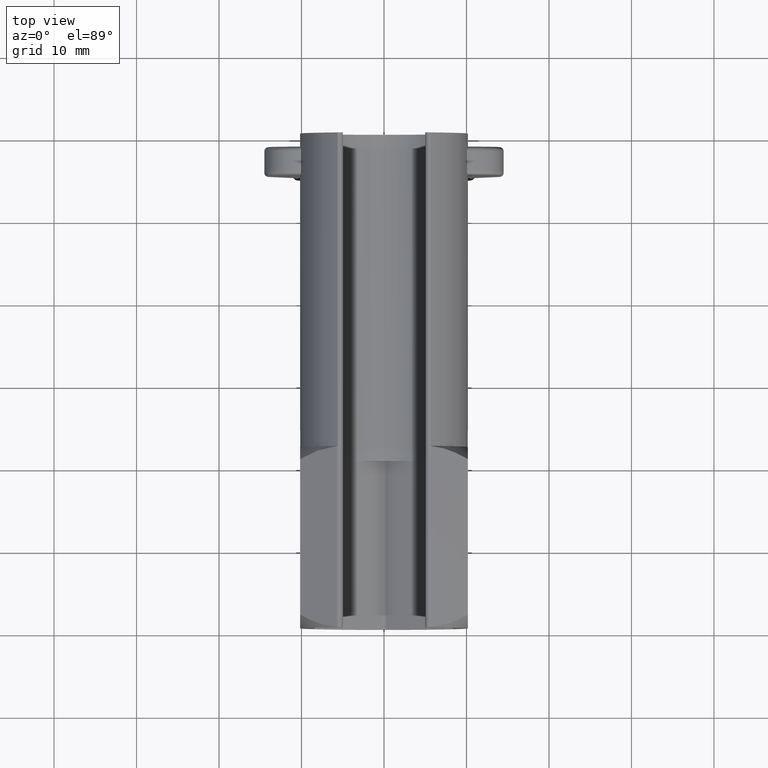
[diagram: clean part render]
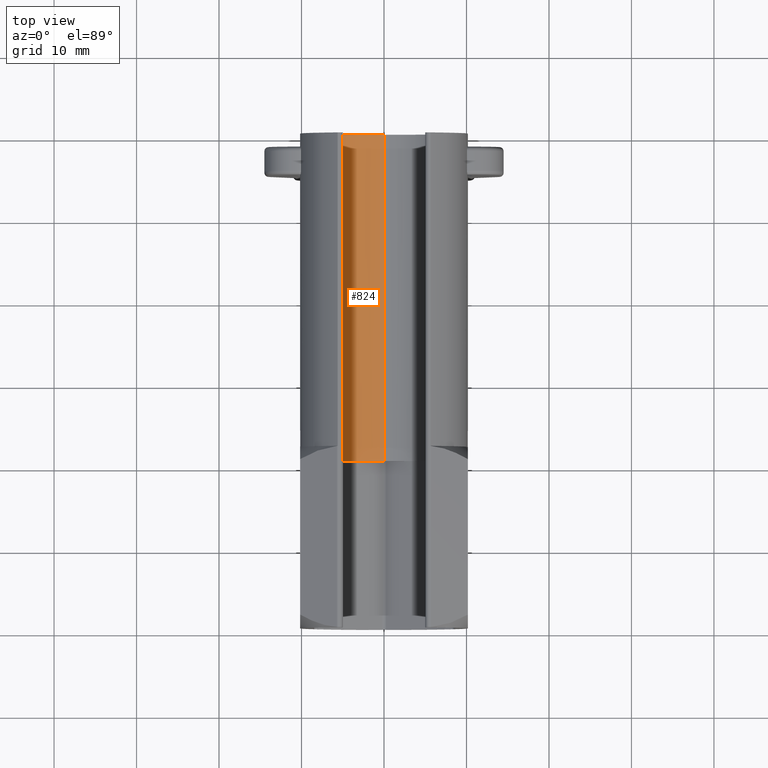
[diagram: same view with one face highlighted and labeled with its STEP entity id]
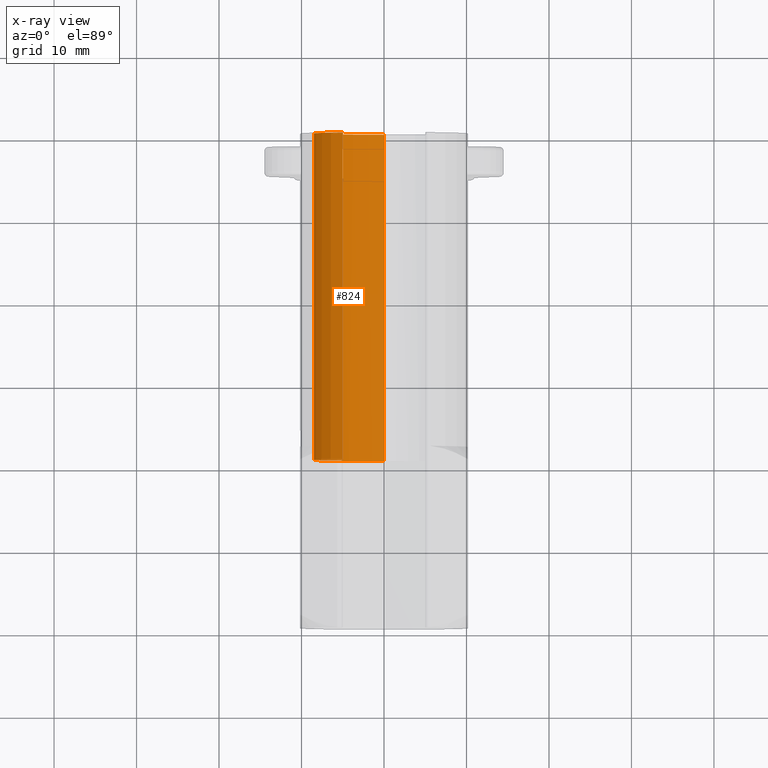
[diagram: x-ray of the same camera — body ghosted, the highlighted face saturated]
A machine part, top view. The second image highlights one B-rep face of the part: STEP entity #824.
The next image is the same camera in x-ray: the body ghosted, the highlighted face saturated — about 0% of this face is hidden behind the body in this view.
In plain terms, the highlighted cylindrical surface (partial cylindrical patch) has radius 8.5 mm, axis along (0, -1, 0).
Its self-contained STEP definition (entity closure, byte-faithful):
#741 = VERTEX_POINT ( 'NONE', #2211 ) ;
#744 = EDGE_CURVE ( 'NONE', #741, #745, #2209, .T. ) ;
#745 = VERTEX_POINT ( 'NONE', #2205 ) ;
#805 = ORIENTED_EDGE ( 'NONE', *, *, #744, .F. ) ;
#806 = ORIENTED_EDGE ( 'NONE', *, *, #807, .F. ) ;
#807 = EDGE_CURVE ( 'NONE', #808, #741, #2329, .T. ) ;
#808 = VERTEX_POINT ( 'NONE', #2324 ) ;
#809 = ORIENTED_EDGE ( 'NONE', *, *, #810, .T. ) ;
#810 = EDGE_CURVE ( 'NONE', #808, #811, #2385, .T. ) ;
#811 = VERTEX_POINT ( 'NONE', #2381 ) ;
#812 = ORIENTED_EDGE ( 'NONE', *, *, #813, .F. ) ;
#813 = EDGE_CURVE ( 'NONE', #814, #811, #2380, .T. ) ;
#814 = VERTEX_POINT ( 'NONE', #2375 ) ;
#815 = ORIENTED_EDGE ( 'NONE', *, *, #816, .F. ) ;
#816 = EDGE_CURVE ( 'NONE', #817, #814, #2374, .T. ) ;
#817 = VERTEX_POINT ( 'NONE', #2369 ) ;
#818 = ORIENTED_EDGE ( 'NONE', *, *, #857, .F. ) ;
#824 = ADVANCED_FACE ( 'NONE', ( #2359 ), #2358, .F. ) ;
#825 = EDGE_LOOP ( 'NONE', ( #805, #806, #809, #812, #815, #818 ) ) ;
#857 = EDGE_CURVE ( 'NONE', #745, #817, #2471, .T. ) ;
#2205 = CARTESIAN_POINT ( 'NONE',  ( 0.0000000000000000000, 20.42569849446715600, -8.500000000000000000 ) ) ;
#2206 = DIRECTION ( 'NONE',  ( 0.0000000000000000000, -1.000000000000000000, 0.0000000000000000000 ) ) ;
#2207 = VECTOR ( 'NONE', #2206, 1000.000000000000000 ) ;
#2208 = CARTESIAN_POINT ( 'NONE',  ( 0.0000000000000000000, 22.00000000000000000, -8.500000000000000000 ) ) ;
#2209 = LINE ( 'NONE', #2208, #2207 ) ;
#2211 = CARTESIAN_POINT ( 'NONE',  ( 0.0000000000000000000, 60.00000000000000000, -8.500000000000000000 ) ) ;
#2324 = CARTESIAN_POINT ( 'NONE',  ( -4.999999999999997300, 60.00000000000000000, 6.873863542433761100 ) ) ;
#2325 = DIRECTION ( 'NONE',  ( 0.0000000000000000000, 0.0000000000000000000, 1.000000000000000000 ) ) ;
#2326 = DIRECTION ( 'NONE',  ( 0.0000000000000000000, -1.000000000000000000, 0.0000000000000000000 ) ) ;
#2327 = CARTESIAN_POINT ( 'NONE',  ( 0.0000000000000000000, 60.00000000000000000, 0.0000000000000000000 ) ) ;
#2328 = AXIS2_PLACEMENT_3D ( 'NONE', #2327, #2326, #2325 ) ;
#2329 = CIRCLE ( 'NONE', #2328, 8.500000000000000000 ) ;
#2354 = DIRECTION ( 'NONE',  ( 0.0000000000000000000, 0.0000000000000000000, -1.000000000000000000 ) ) ;
#2355 = DIRECTION ( 'NONE',  ( 0.0000000000000000000, -1.000000000000000000, 0.0000000000000000000 ) ) ;
#2356 = CARTESIAN_POINT ( 'NONE',  ( 0.0000000000000000000, 22.00000000000000000, 0.0000000000000000000 ) ) ;
#2357 = AXIS2_PLACEMENT_3D ( 'NONE', #2356, #2355, #2354 ) ;
#2358 = CYLINDRICAL_SURFACE ( 'NONE', #2357, 8.500000000000000000 ) ;
#2359 = FACE_OUTER_BOUND ( 'NONE', #825, .T. ) ;
#2369 = CARTESIAN_POINT ( 'NONE',  ( -4.250000000000000000, 20.42569849446715600, -7.361215932167730200 ) ) ;
#2370 = DIRECTION ( 'NONE',  ( 0.0000000000000000000, 0.0000000000000000000, -1.000000000000000000 ) ) ;
#2371 = DIRECTION ( 'NONE',  ( 0.0000000000000000000, 1.000000000000000000, 0.0000000000000000000 ) ) ;
#2372 = CARTESIAN_POINT ( 'NONE',  ( 0.0000000000000000000, 20.42569849446715600, 0.0000000000000000000 ) ) ;
#2373 = AXIS2_PLACEMENT_3D ( 'NONE', #2372, #2371, #2370 ) ;
#2374 = CIRCLE ( 'NONE', #2373, 8.500000000000000000 ) ;
#2375 = CARTESIAN_POINT ( 'NONE',  ( -8.500000000000001800, 20.42569849446715600, 0.0000000000000000000 ) ) ;
#2376 = DIRECTION ( 'NONE',  ( 0.0000000000000000000, 0.0000000000000000000, -1.000000000000000000 ) ) ;
#2377 = DIRECTION ( 'NONE',  ( 0.0000000000000000000, 1.000000000000000000, 0.0000000000000000000 ) ) ;
#2378 = CARTESIAN_POINT ( 'NONE',  ( 0.0000000000000000000, 20.42569849446715600, 0.0000000000000000000 ) ) ;
#2379 = AXIS2_PLACEMENT_3D ( 'NONE', #2378, #2377, #2376 ) ;
#2380 = CIRCLE ( 'NONE', #2379, 8.500000000000000000 ) ;
#2381 = CARTESIAN_POINT ( 'NONE',  ( -4.999999999999998200, 20.42569849446715600, 6.873863542433762900 ) ) ;
#2382 = DIRECTION ( 'NONE',  ( 0.0000000000000000000, -1.000000000000000000, 0.0000000000000000000 ) ) ;
#2383 = VECTOR ( 'NONE', #2382, 1000.000000000000000 ) ;
#2384 = CARTESIAN_POINT ( 'NONE',  ( -4.999999999999997300, 22.00000000000000000, 6.873863542433761100 ) ) ;
#2385 = LINE ( 'NONE', #2384, #2383 ) ;
#2467 = DIRECTION ( 'NONE',  ( 0.0000000000000000000, 0.0000000000000000000, -1.000000000000000000 ) ) ;
#2468 = DIRECTION ( 'NONE',  ( 0.0000000000000000000, 1.000000000000000000, 0.0000000000000000000 ) ) ;
#2469 = CARTESIAN_POINT ( 'NONE',  ( 0.0000000000000000000, 20.42569849446715600, 0.0000000000000000000 ) ) ;
#2470 = AXIS2_PLACEMENT_3D ( 'NONE', #2469, #2468, #2467 ) ;
#2471 = CIRCLE ( 'NONE', #2470, 8.500000000000000000 ) ;